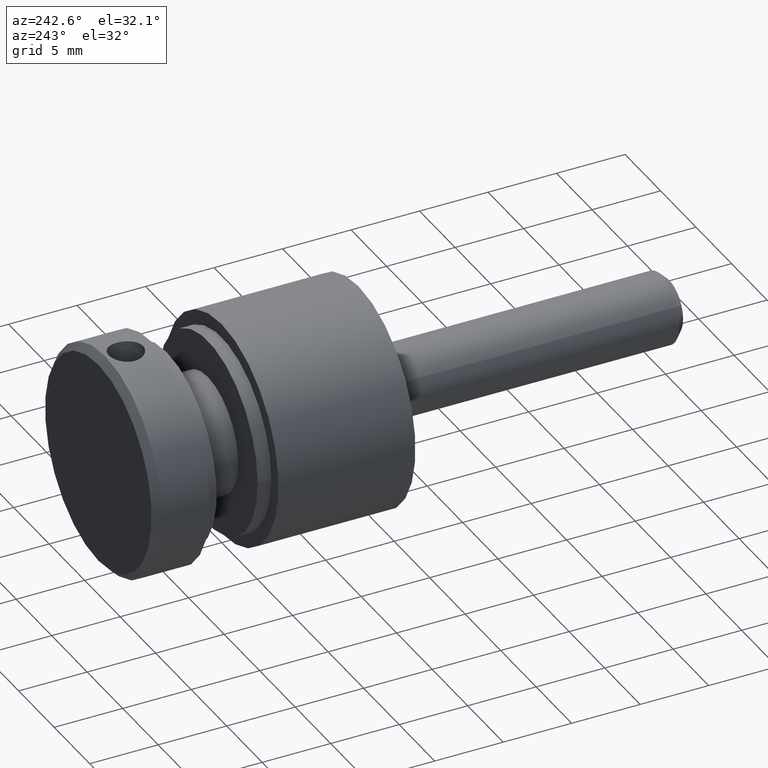
[diagram: clean part render]
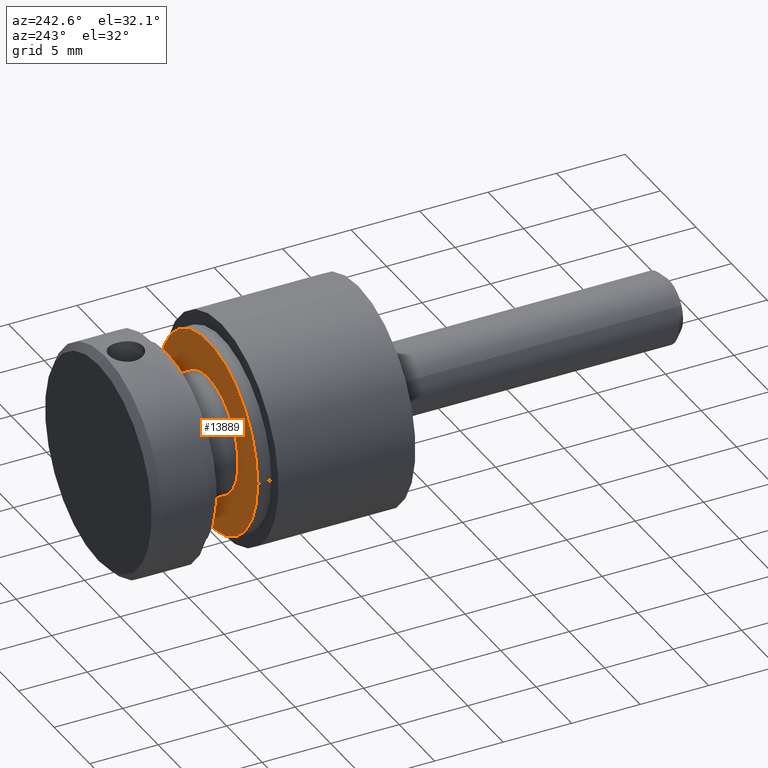
[diagram: same view with one face highlighted and labeled with its STEP entity id]
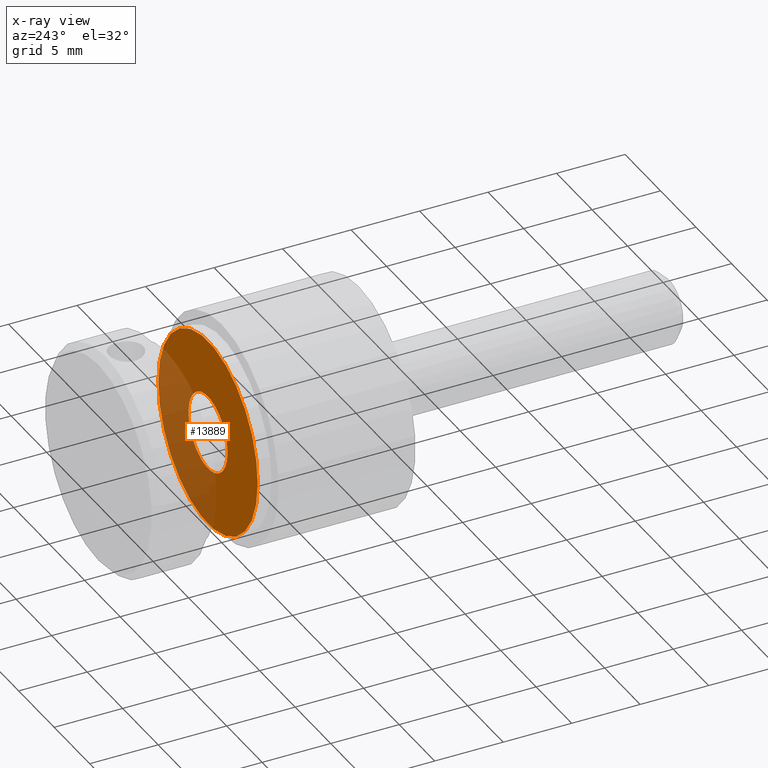
[diagram: x-ray of the same camera — body ghosted, the highlighted face saturated]
A machine part, auxiliary view. The second image highlights one B-rep face of the part: STEP entity #13889.
The next image is the same camera in x-ray: the body ghosted, the highlighted face saturated — about 37% of this face is hidden behind the body in this view.
In plain terms, the highlighted planar face has unit normal (0, -1, 0).
Its self-contained STEP definition (entity closure, byte-faithful):
#444 = ORIENTED_EDGE ( 'NONE', *, *, #1570, .F. ) ;
#622 = CARTESIAN_POINT ( 'NONE',  ( -2.750000000000001332, 0.4999999999999978351, 0.000000000000000000 ) ) ;
#994 = DIRECTION ( 'NONE',  ( -1.000000000000000000, -3.154042683594194134E-16, 0.000000000000000000 ) ) ;
#1150 = ORIENTED_EDGE ( 'NONE', *, *, #2553, .T. ) ;
#1570 = EDGE_CURVE ( 'NONE', #2351, #2982, #14537, .T. ) ;
#1984 = AXIS2_PLACEMENT_3D ( 'NONE', #10228, #9089, #10469 ) ;
#1993 = ORIENTED_EDGE ( 'NONE', *, *, #7191, .F. ) ;
#2351 = VERTEX_POINT ( 'NONE', #17040 ) ;
#2553 = EDGE_CURVE ( 'NONE', #11331, #4948, #6312, .T. ) ;
#2660 = DIRECTION ( 'NONE',  ( -3.061616997868382648E-16, 1.000000000000000000, -0.000000000000000000 ) ) ;
#2969 = EDGE_LOOP ( 'NONE', ( #1993, #444 ) ) ;
#2982 = VERTEX_POINT ( 'NONE', #622 ) ;
#3385 = CARTESIAN_POINT ( 'NONE',  ( -8.440325257662492621E-16, 0.4999999999999978351, 0.000000000000000000 ) ) ;
#3444 = CIRCLE ( 'NONE', #5684, 7.000000000000001776 ) ;
#3645 = CARTESIAN_POINT ( 'NONE',  ( 7.000000000000000888, 0.5000000000000000000, 8.572527594031474176E-16 ) ) ;
#4068 = CARTESIAN_POINT ( 'NONE',  ( 2.749999999999999556, 0.4999999999999987232, 0.000000000000000000 ) ) ;
#4948 = VERTEX_POINT ( 'NONE', #3645 ) ;
#5640 = AXIS2_PLACEMENT_3D ( 'NONE', #15693, #10152, #994 ) ;
#5684 = AXIS2_PLACEMENT_3D ( 'NONE', #3385, #14339, #11695 ) ;
#5851 = CARTESIAN_POINT ( 'NONE',  ( -7.000000000000002665, 0.4999999999999956701, 0.000000000000000000 ) ) ;
#6312 = CIRCLE ( 'NONE', #17295, 7.000000000000001776 ) ;
#6715 = DIRECTION ( 'NONE',  ( 3.061616997868382648E-16, -1.000000000000000000, 0.000000000000000000 ) ) ;
#7191 = EDGE_CURVE ( 'NONE', #2982, #2351, #14674, .T. ) ;
#8010 = CARTESIAN_POINT ( 'NONE',  ( -8.440325257662492621E-16, 0.4999999999999978351, 0.000000000000000000 ) ) ;
#8483 = FACE_OUTER_BOUND ( 'NONE', #14280, .T. ) ;
#8898 = ORIENTED_EDGE ( 'NONE', *, *, #11392, .T. ) ;
#9089 = DIRECTION ( 'NONE',  ( -3.061616997868382648E-16, 1.000000000000000000, -0.000000000000000000 ) ) ;
#9732 = FACE_BOUND ( 'NONE', #2969, .T. ) ;
#10152 = DIRECTION ( 'NONE',  ( -3.061616997868382648E-16, 1.000000000000000000, -0.000000000000000000 ) ) ;
#10228 = CARTESIAN_POINT ( 'NONE',  ( -8.440325257662496565E-16, 0.4999999999999987232, 0.000000000000000000 ) ) ;
#10438 = DIRECTION ( 'NONE',  ( 1.000000000000000000, 3.061616997868382648E-16, 0.000000000000000000 ) ) ;
#10469 = DIRECTION ( 'NONE',  ( -1.000000000000000000, -3.154042683594194134E-16, 0.000000000000000000 ) ) ;
#10533 = DIRECTION ( 'NONE',  ( -1.000000000000000000, -3.097720492815726180E-16, 0.000000000000000000 ) ) ;
#11331 = VERTEX_POINT ( 'NONE', #5851 ) ;
#11392 = EDGE_CURVE ( 'NONE', #4948, #11331, #3444, .T. ) ;
#11695 = DIRECTION ( 'NONE',  ( -1.000000000000000000, -3.097720492815726180E-16, 0.000000000000000000 ) ) ;
#13384 = PLANE ( 'NONE',  #15984 ) ;
#13889 = ADVANCED_FACE ( 'NONE', ( #9732, #8483 ), #13384, .F. ) ;
#14280 = EDGE_LOOP ( 'NONE', ( #1150, #8898 ) ) ;
#14339 = DIRECTION ( 'NONE',  ( -3.061616997868382648E-16, 1.000000000000000000, -0.000000000000000000 ) ) ;
#14537 = CIRCLE ( 'NONE', #5640, 2.750000000000000444 ) ;
#14674 = CIRCLE ( 'NONE', #1984, 2.750000000000000444 ) ;
#15693 = CARTESIAN_POINT ( 'NONE',  ( -8.440325257662496565E-16, 0.4999999999999987232, 0.000000000000000000 ) ) ;
#15984 = AXIS2_PLACEMENT_3D ( 'NONE', #4068, #6715, #10438 ) ;
#17040 = CARTESIAN_POINT ( 'NONE',  ( 2.749999999999999556, 0.4999999999999995559, 3.367778697655221505E-16 ) ) ;
#17295 = AXIS2_PLACEMENT_3D ( 'NONE', #8010, #2660, #10533 ) ;